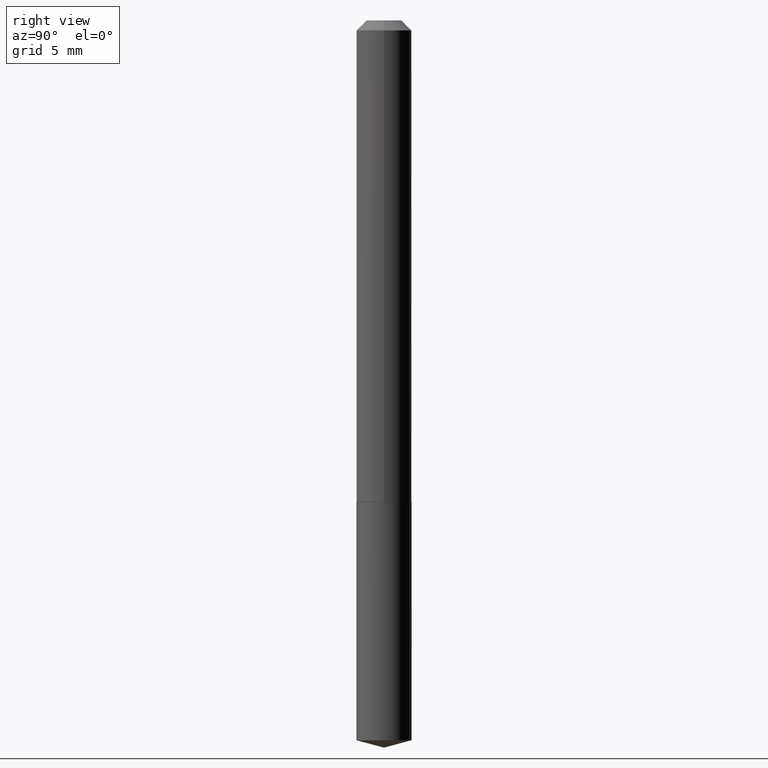
[diagram: clean part render]
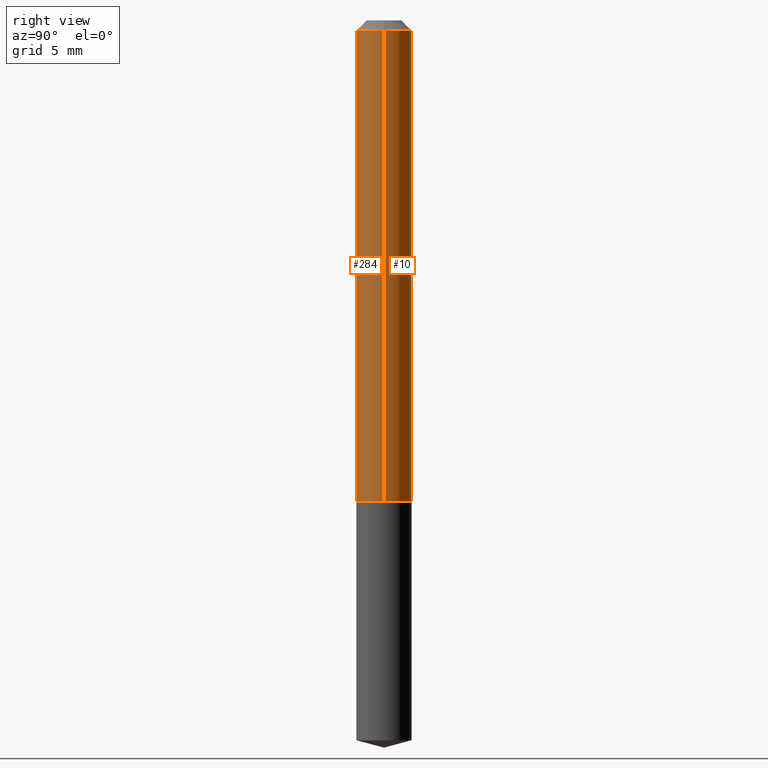
[diagram: same view with one multi-face feature highlighted, each face labeled with its STEP entity id]
A machine part, right view. The highlighted faces form ONE feature: a constant-radius fillet chain: 2 tangent blend faces with common blend radius 2.1996 mm. The faces share edges in the B-rep.
Their STEP definitions:
[1] entity #284 (Cylinder):
#6 = VECTOR ( 'NONE', #113, 39.37007874015748143 ) ;
#17 = CARTESIAN_POINT ( 'NONE',  ( -0.08659999999999998255, -2.077562260447999006E-15, -0.03125000000000021511 ) ) ;
#19 = CARTESIAN_POINT ( 'NONE',  ( 0.08659999999999998255, -7.138333597264797291E-16, -0.03125000000000021511 ) ) ;
#21 = DIRECTION ( 'NONE',  ( -2.445468806185136597E-29, 3.491481338843145583E-15, 1.000000000000000000 ) ) ;
#23 = CARTESIAN_POINT ( 'NONE',  ( -0.08660000000000007969, 6.153300091682473272E-16, -4.259797788160751610E-30 ) ) ;
#30 = CIRCLE ( 'NONE', #331, 0.08659999999999998255 ) ;
#47 = FACE_OUTER_BOUND ( 'NONE', #131, .T. ) ;
#67 = LINE ( 'NONE', #112, #6 ) ;
#68 = VERTEX_POINT ( 'NONE', #88 ) ;
#72 = VERTEX_POINT ( 'NONE', #19 ) ;
#76 = EDGE_CURVE ( 'NONE', #68, #170, #211, .T. ) ;
#84 = AXIS2_PLACEMENT_3D ( 'NONE', #92, #379, #154 ) ;
#88 = CARTESIAN_POINT ( 'NONE',  ( -0.08660000000000017684, -4.661345738225397323E-15, -1.511300000000000088 ) ) ;
#92 = CARTESIAN_POINT ( 'NONE',  ( 3.695837006787596715E-29, -5.276675747393645735E-15, -1.511300000000000088 ) ) ;
#106 = EDGE_CURVE ( 'NONE', #215, #72, #67, .T. ) ;
#107 = CARTESIAN_POINT ( 'NONE',  ( 0.08660000000000017684, -5.881400315281277448E-15, -1.511300000000000088 ) ) ;
#112 = CARTESIAN_POINT ( 'NONE',  ( 0.08660000000000007969, -6.047245678876313188E-16, 4.222769087839284057E-30 ) ) ;
#113 = DIRECTION ( 'NONE',  ( -2.445468806185136877E-29, 3.491481338843145188E-15, 1.000000000000000000 ) ) ;
#123 = ORIENTED_EDGE ( 'NONE', *, *, #256, .F. ) ;
#131 = EDGE_LOOP ( 'NONE', ( #210, #183, #327, #123 ) ) ;
#137 = CARTESIAN_POINT ( 'NONE',  ( 0.000000000000000000, 0.000000000000000000, 0.000000000000000000 ) ) ;
#151 = DIRECTION ( 'NONE',  ( -2.445468806185136877E-29, 3.491481338843145188E-15, 1.000000000000000000 ) ) ;
#154 = DIRECTION ( 'NONE',  ( 1.000000000000000000, -6.982962677686265133E-15, 0.000000000000000000 ) ) ;
#165 = DIRECTION ( 'NONE',  ( -2.445468806185136597E-29, 3.491481338843145583E-15, 1.000000000000000000 ) ) ;
#167 = CYLINDRICAL_SURFACE ( 'NONE', #380, 0.08660000000000007969 ) ;
#170 = VERTEX_POINT ( 'NONE', #17 ) ;
#179 = VECTOR ( 'NONE', #151, 39.37007874015748143 ) ;
#183 = ORIENTED_EDGE ( 'NONE', *, *, #319, .T. ) ;
#210 = ORIENTED_EDGE ( 'NONE', *, *, #76, .F. ) ;
#211 = LINE ( 'NONE', #23, #179 ) ;
#215 = VERTEX_POINT ( 'NONE', #107 ) ;
#232 = CIRCLE ( 'NONE', #84, 0.08660000000000017684 ) ;
#256 = EDGE_CURVE ( 'NONE', #170, #72, #30, .T. ) ;
#284 = ADVANCED_FACE ( 'NONE', ( #47 ), #167, .T. ) ;
#319 = EDGE_CURVE ( 'NONE', #68, #215, #232, .T. ) ;
#321 = DIRECTION ( 'NONE',  ( 1.000000000000000000, -6.982962677686267499E-15, 4.876176775795935793E-29 ) ) ;
#327 = ORIENTED_EDGE ( 'NONE', *, *, #106, .T. ) ;
#331 = AXIS2_PLACEMENT_3D ( 'NONE', #371, #165, #338 ) ;
#338 = DIRECTION ( 'NONE',  ( 1.000000000000000000, -6.982962677686267499E-15, 0.000000000000000000 ) ) ;
#371 = CARTESIAN_POINT ( 'NONE',  ( 7.642090019328603538E-31, -1.091087918388490390E-16, -0.03125000000000021511 ) ) ;
#379 = DIRECTION ( 'NONE',  ( -2.445468806185136597E-29, 3.491481338843145583E-15, 1.000000000000000000 ) ) ;
#380 = AXIS2_PLACEMENT_3D ( 'NONE', #137, #21, #321 ) ;
[2] entity #10 (Cylinder):
#6 = VECTOR ( 'NONE', #113, 39.37007874015748143 ) ;
#10 = ADVANCED_FACE ( 'NONE', ( #272 ), #381, .T. ) ;
#17 = CARTESIAN_POINT ( 'NONE',  ( -0.08659999999999998255, -2.077562260447999006E-15, -0.03125000000000021511 ) ) ;
#19 = CARTESIAN_POINT ( 'NONE',  ( 0.08659999999999998255, -7.138333597264797291E-16, -0.03125000000000021511 ) ) ;
#22 = CIRCLE ( 'NONE', #166, 0.08659999999999998255 ) ;
#23 = CARTESIAN_POINT ( 'NONE',  ( -0.08660000000000007969, 6.153300091682473272E-16, -4.259797788160751610E-30 ) ) ;
#67 = LINE ( 'NONE', #112, #6 ) ;
#68 = VERTEX_POINT ( 'NONE', #88 ) ;
#72 = VERTEX_POINT ( 'NONE', #19 ) ;
#76 = EDGE_CURVE ( 'NONE', #68, #170, #211, .T. ) ;
#88 = CARTESIAN_POINT ( 'NONE',  ( -0.08660000000000017684, -4.661345738225397323E-15, -1.511300000000000088 ) ) ;
#106 = EDGE_CURVE ( 'NONE', #215, #72, #67, .T. ) ;
#107 = CARTESIAN_POINT ( 'NONE',  ( 0.08660000000000017684, -5.881400315281277448E-15, -1.511300000000000088 ) ) ;
#112 = CARTESIAN_POINT ( 'NONE',  ( 0.08660000000000007969, -6.047245678876313188E-16, 4.222769087839284057E-30 ) ) ;
#113 = DIRECTION ( 'NONE',  ( -2.445468806185136877E-29, 3.491481338843145188E-15, 1.000000000000000000 ) ) ;
#148 = AXIS2_PLACEMENT_3D ( 'NONE', #289, #169, #290 ) ;
#151 = DIRECTION ( 'NONE',  ( -2.445468806185136877E-29, 3.491481338843145188E-15, 1.000000000000000000 ) ) ;
#155 = ORIENTED_EDGE ( 'NONE', *, *, #294, .F. ) ;
#159 = EDGE_LOOP ( 'NONE', ( #386, #253, #155, #251 ) ) ;
#166 = AXIS2_PLACEMENT_3D ( 'NONE', #326, #299, #242 ) ;
#169 = DIRECTION ( 'NONE',  ( -2.445468806185136597E-29, 3.491481338843145583E-15, 1.000000000000000000 ) ) ;
#170 = VERTEX_POINT ( 'NONE', #17 ) ;
#172 = EDGE_CURVE ( 'NONE', #215, #68, #280, .T. ) ;
#179 = VECTOR ( 'NONE', #151, 39.37007874015748143 ) ;
#182 = CARTESIAN_POINT ( 'NONE',  ( 0.000000000000000000, 0.000000000000000000, 0.000000000000000000 ) ) ;
#211 = LINE ( 'NONE', #23, #179 ) ;
#215 = VERTEX_POINT ( 'NONE', #107 ) ;
#217 = DIRECTION ( 'NONE',  ( 1.000000000000000000, -6.982962677686267499E-15, 4.876176775795935793E-29 ) ) ;
#242 = DIRECTION ( 'NONE',  ( 1.000000000000000000, -6.982962677686267499E-15, 0.000000000000000000 ) ) ;
#246 = DIRECTION ( 'NONE',  ( -2.445468806185136597E-29, 3.491481338843145583E-15, 1.000000000000000000 ) ) ;
#251 = ORIENTED_EDGE ( 'NONE', *, *, #106, .F. ) ;
#253 = ORIENTED_EDGE ( 'NONE', *, *, #76, .T. ) ;
#272 = FACE_OUTER_BOUND ( 'NONE', #159, .T. ) ;
#280 = CIRCLE ( 'NONE', #148, 0.08660000000000017684 ) ;
#289 = CARTESIAN_POINT ( 'NONE',  ( 3.695837006787596715E-29, -5.276675747393645735E-15, -1.511300000000000088 ) ) ;
#290 = DIRECTION ( 'NONE',  ( 1.000000000000000000, -6.982962677686265133E-15, 0.000000000000000000 ) ) ;
#294 = EDGE_CURVE ( 'NONE', #72, #170, #22, .T. ) ;
#299 = DIRECTION ( 'NONE',  ( -2.445468806185136597E-29, 3.491481338843145583E-15, 1.000000000000000000 ) ) ;
#326 = CARTESIAN_POINT ( 'NONE',  ( 7.642090019328603538E-31, -1.091087918388490390E-16, -0.03125000000000021511 ) ) ;
#357 = AXIS2_PLACEMENT_3D ( 'NONE', #182, #246, #217 ) ;
#381 = CYLINDRICAL_SURFACE ( 'NONE', #357, 0.08660000000000007969 ) ;
#386 = ORIENTED_EDGE ( 'NONE', *, *, #172, .T. ) ;